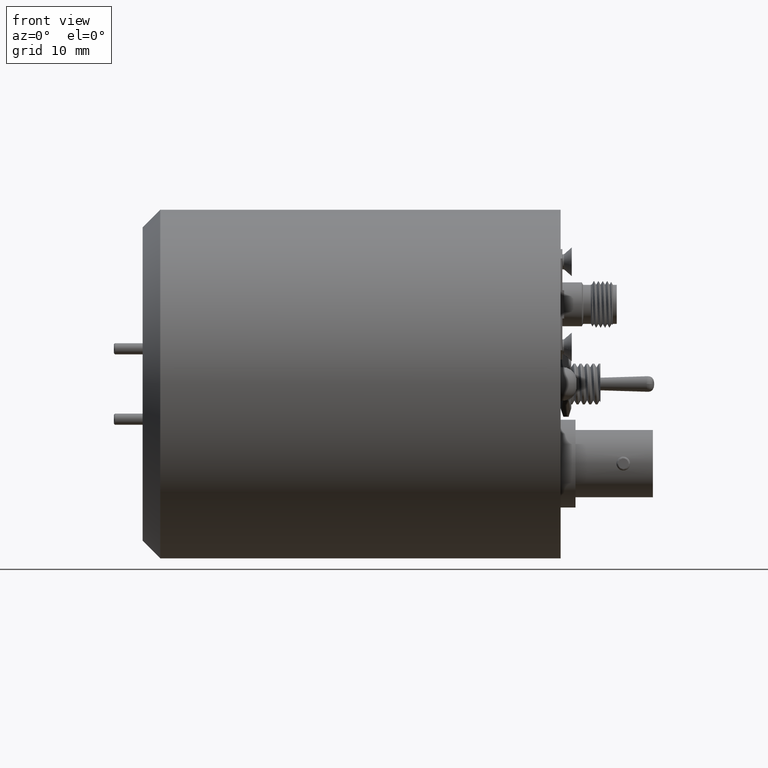
[diagram: clean part render]
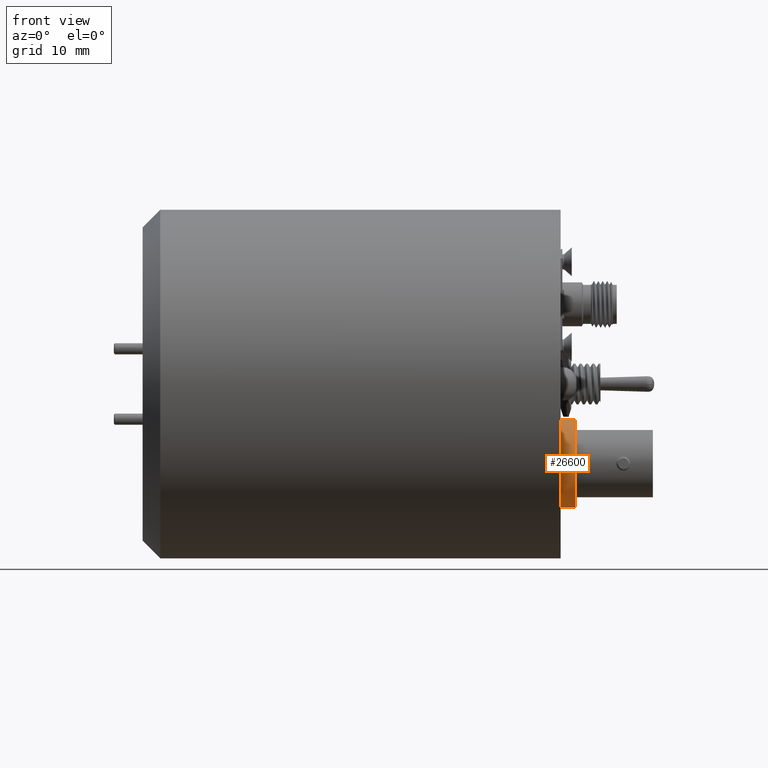
[diagram: same view with one face highlighted and labeled with its STEP entity id]
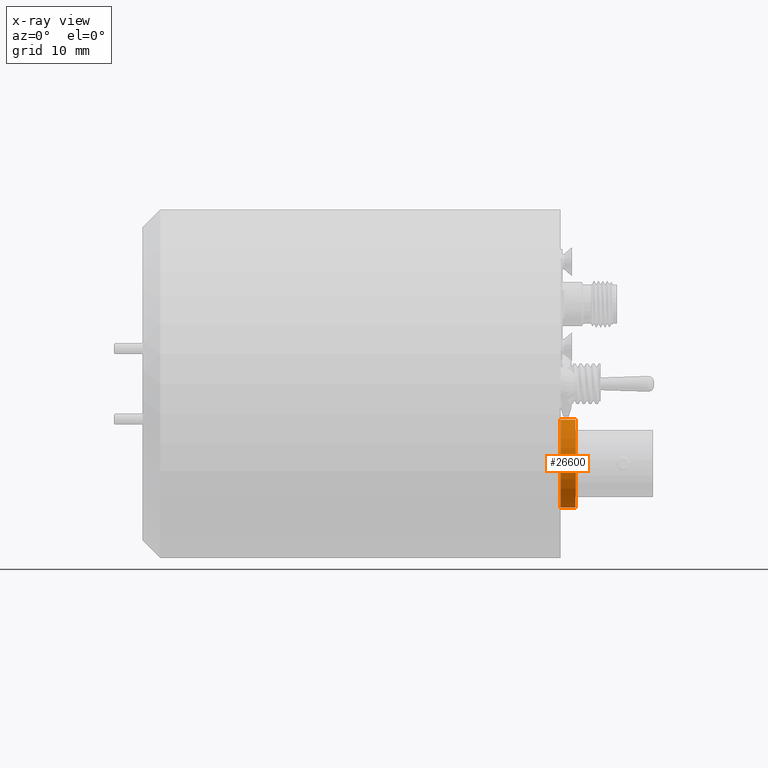
[diagram: x-ray of the same camera — body ghosted, the highlighted face saturated]
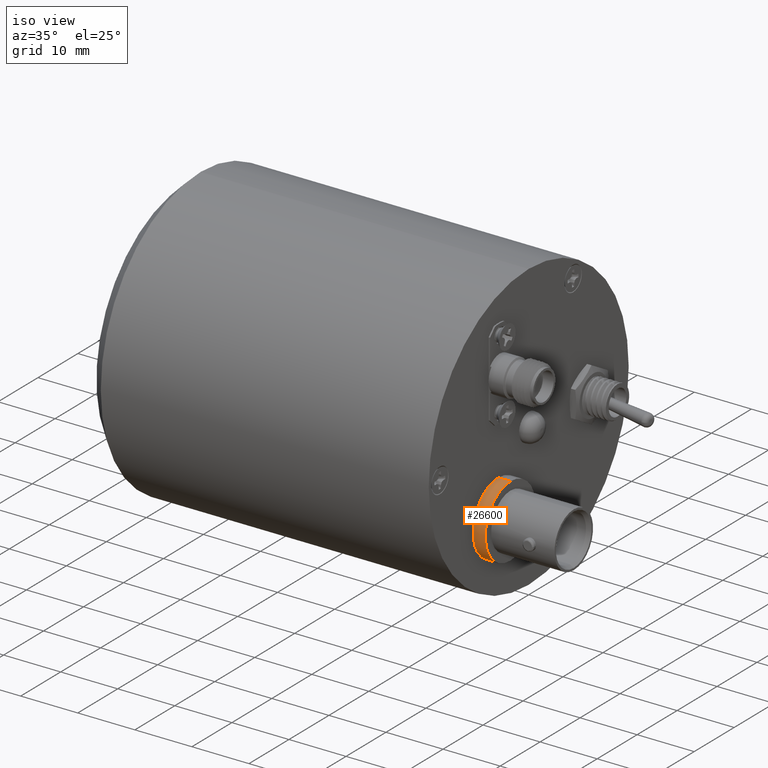
[diagram: same view with one face highlighted and labeled with its STEP entity id]
A machine part, front view. The second image highlights one B-rep face of the part: STEP entity #26600.
The next image is the same camera in x-ray: the body ghosted, the highlighted face saturated — about 0% of this face is hidden behind the body in this view.
A second angle (iso view) of the same face is appended — the face is thin or edge-on in the first view.
In plain terms, the highlighted cylindrical surface (partial cylindrical patch) has radius 6.2948 mm, axis along (1, -0, 0).
Its self-contained STEP definition (entity closure, byte-faithful):
#384 = CARTESIAN_POINT ( 'NONE',  ( 2.130806000000002400, -7.619999999999998300, -5.135244999999998500 ) ) ;
#3614 = ORIENTED_EDGE ( 'NONE', *, *, #8850, .F. ) ;
#3900 = DIRECTION ( 'NONE',  ( 1.000000000000000000, -2.775557561562890100E-017, 1.683656803805726100E-033 ) ) ;
#3917 = CARTESIAN_POINT ( 'NONE',  ( -16.34642399999999900, -7.619999999999997400, -5.135244999999998500 ) ) ;
#4121 = AXIS2_PLACEMENT_3D ( 'NONE', #17938, #27524, #18136 ) ;
#4556 = AXIS2_PLACEMENT_3D ( 'NONE', #20220, #3900, #5986 ) ;
#5336 = VERTEX_POINT ( 'NONE', #13759 ) ;
#5986 = DIRECTION ( 'NONE',  ( 0.0000000000000000000, 0.0000000000000000000, -1.000000000000000000 ) ) ;
#6241 = LINE ( 'NONE', #30312, #8104 ) ;
#6301 = VERTEX_POINT ( 'NONE', #24179 ) ;
#6869 = ORIENTED_EDGE ( 'NONE', *, *, #16265, .F. ) ;
#7675 = CYLINDRICAL_SURFACE ( 'NONE', #4556, 6.294755000000003000 ) ;
#8104 = VECTOR ( 'NONE', #9156, 1000.000000000000000 ) ;
#8850 = EDGE_CURVE ( 'NONE', #16498, #15935, #22433, .T. ) ;
#9156 = DIRECTION ( 'NONE',  ( 1.000000000000000000, -2.775557561562890100E-017, 1.683656803805726100E-033 ) ) ;
#9185 = DIRECTION ( 'NONE',  ( 0.0000000000000000000, 0.0000000000000000000, -1.000000000000000000 ) ) ;
#9949 = VECTOR ( 'NONE', #17895, 1000.000000000000000 ) ;
#10127 = EDGE_LOOP ( 'NONE', ( #3614, #6869, #10970, #24135 ) ) ;
#10970 = ORIENTED_EDGE ( 'NONE', *, *, #25282, .T. ) ;
#12457 = FACE_OUTER_BOUND ( 'NONE', #10127, .T. ) ;
#13759 = CARTESIAN_POINT ( 'NONE',  ( 2.130806000000002400, -7.619999999999999200, -17.72475500000000200 ) ) ;
#14125 = CARTESIAN_POINT ( 'NONE',  ( 2.130806000000002400, -7.619999999999999200, -11.43000000000000000 ) ) ;
#15935 = VERTEX_POINT ( 'NONE', #384 ) ;
#16265 = EDGE_CURVE ( 'NONE', #6301, #16498, #23879, .T. ) ;
#16274 = CARTESIAN_POINT ( 'NONE',  ( 1.347591722080032400E-032, -7.619999999999998300, -5.135244999999998500 ) ) ;
#16449 = EDGE_CURVE ( 'NONE', #5336, #15935, #20548, .T. ) ;
#16498 = VERTEX_POINT ( 'NONE', #16274 ) ;
#17895 = DIRECTION ( 'NONE',  ( 1.000000000000000000, -2.775557561562890100E-017, 1.683656803805726100E-033 ) ) ;
#17938 = CARTESIAN_POINT ( 'NONE',  ( 0.0000000000000000000, -7.619999999999999200, -11.43000000000000000 ) ) ;
#18136 = DIRECTION ( 'NONE',  ( -1.683656803805725400E-033, 0.0000000000000000000, -1.000000000000000000 ) ) ;
#20220 = CARTESIAN_POINT ( 'NONE',  ( -16.34642399999999900, -7.619999999999998300, -11.43000000000000000 ) ) ;
#20548 = CIRCLE ( 'NONE', #22440, 6.294755000000003000 ) ;
#22433 = LINE ( 'NONE', #3917, #9949 ) ;
#22440 = AXIS2_PLACEMENT_3D ( 'NONE', #14125, #25687, #9185 ) ;
#23879 = CIRCLE ( 'NONE', #4121, 6.294755000000003000 ) ;
#24135 = ORIENTED_EDGE ( 'NONE', *, *, #16449, .T. ) ;
#24179 = CARTESIAN_POINT ( 'NONE',  ( -1.059820708404011500E-032, -7.619999999999999200, -17.72475500000000200 ) ) ;
#25282 = EDGE_CURVE ( 'NONE', #6301, #5336, #6241, .T. ) ;
#25687 = DIRECTION ( 'NONE',  ( -1.000000000000000000, 2.775557561562890100E-017, -1.683656803805726100E-033 ) ) ;
#26600 = ADVANCED_FACE ( 'NONE', ( #12457 ), #7675, .T. ) ;
#27524 = DIRECTION ( 'NONE',  ( -1.000000000000000000, 2.775557561562890100E-017, -1.683656803805726100E-033 ) ) ;
#30312 = CARTESIAN_POINT ( 'NONE',  ( -16.34642399999999900, -7.619999999999998300, -17.72475500000000200 ) ) ;